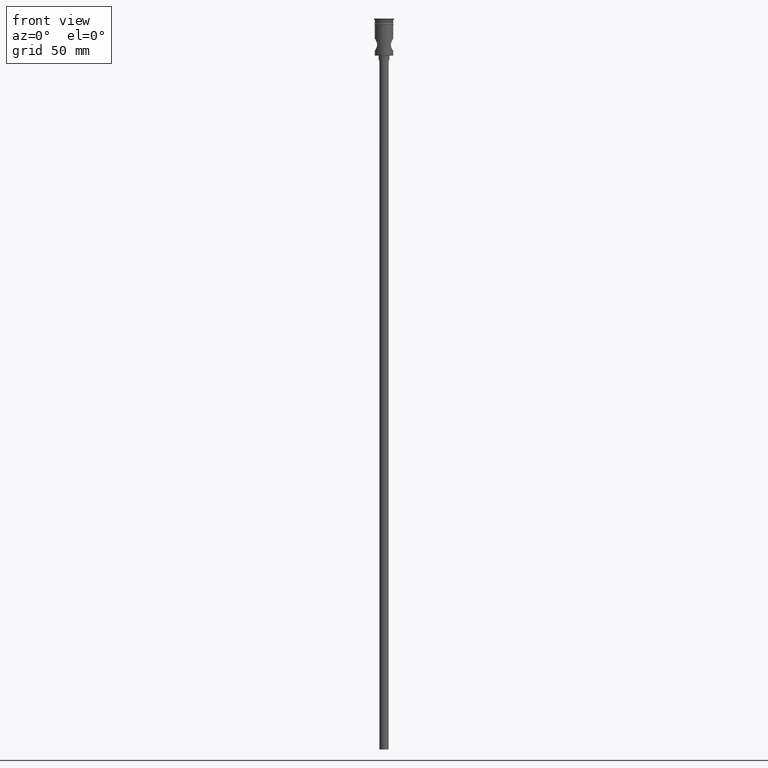
[diagram: clean part render]
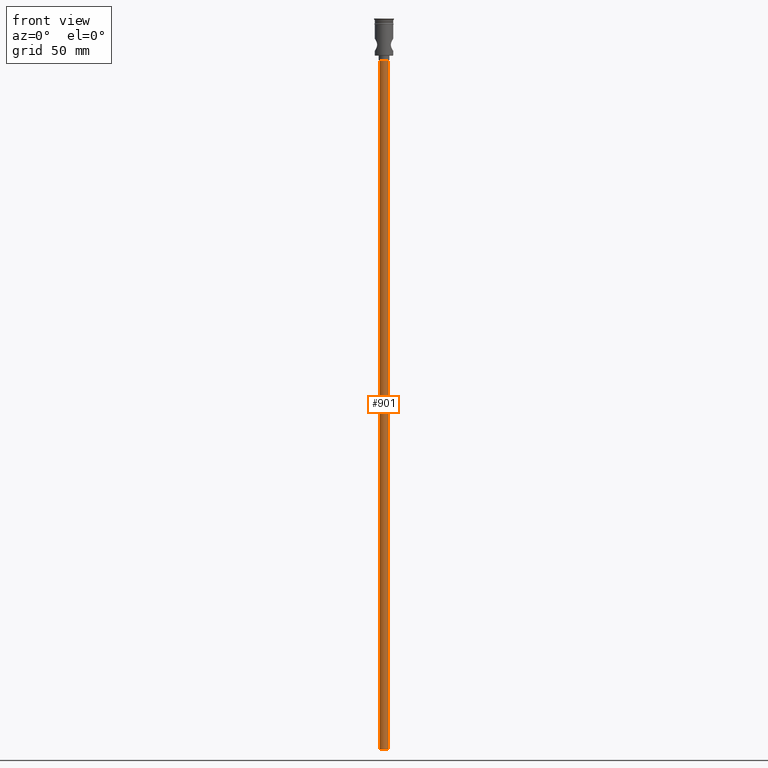
[diagram: same view with one face highlighted and labeled with its STEP entity id]
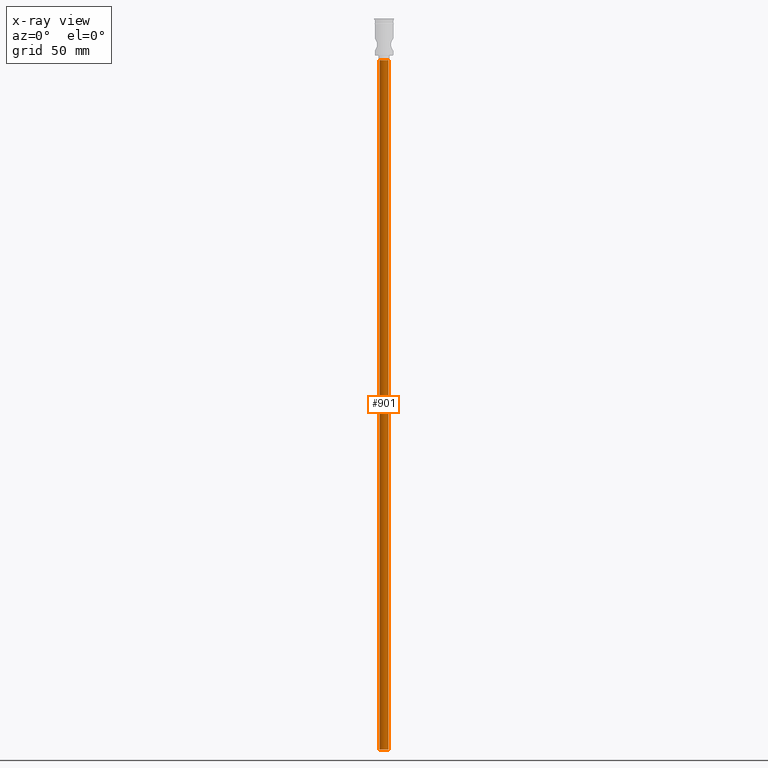
[diagram: x-ray of the same camera — body ghosted, the highlighted face saturated]
A machine part, front view. The second image highlights one B-rep face of the part: STEP entity #901.
The next image is the same camera in x-ray: the body ghosted, the highlighted face saturated — about 0% of this face is hidden behind the body in this view.
In plain terms, the highlighted cylindrical surface (edge-blend (fillet) strip) has radius 3 mm, axis along (-0, -0, 1).
Its self-contained STEP definition (entity closure, byte-faithful):
#15 = DIRECTION ( 'NONE',  ( -1.000000000000000000, 0.000000000000000000, 0.000000000000000000 ) ) ;
#36 = CIRCLE ( 'NONE', #1020, 3.000000000000000444 ) ;
#113 = CARTESIAN_POINT ( 'NONE',  ( 3.000000000000000444, 0.000000000000000000, -474.0000000000000568 ) ) ;
#117 = CARTESIAN_POINT ( 'NONE',  ( 0.000000000000000000, 0.000000000000000000, -474.0000000000000568 ) ) ;
#149 = DIRECTION ( 'NONE',  ( -0.000000000000000000, -0.000000000000000000, 1.000000000000000000 ) ) ;
#214 = AXIS2_PLACEMENT_3D ( 'NONE', #117, #586, #810 ) ;
#301 = DIRECTION ( 'NONE',  ( -0.000000000000000000, -0.000000000000000000, 1.000000000000000000 ) ) ;
#320 = VERTEX_POINT ( 'NONE', #113 ) ;
#411 = VERTEX_POINT ( 'NONE', #1290 ) ;
#498 = VERTEX_POINT ( 'NONE', #975 ) ;
#502 = EDGE_LOOP ( 'NONE', ( #1264, #707, #1118, #662 ) ) ;
#516 = VECTOR ( 'NONE', #1088, 1000.000000000000000 ) ;
#542 = EDGE_CURVE ( 'NONE', #1049, #411, #545, .T. ) ;
#545 = LINE ( 'NONE', #1009, #922 ) ;
#586 = DIRECTION ( 'NONE',  ( 0.000000000000000000, 0.000000000000000000, -1.000000000000000000 ) ) ;
#620 = CARTESIAN_POINT ( 'NONE',  ( 3.000000000000000444, 0.000000000000000000, -474.0000000000000568 ) ) ;
#640 = EDGE_CURVE ( 'NONE', #320, #498, #761, .T. ) ;
#662 = ORIENTED_EDGE ( 'NONE', *, *, #962, .T. ) ;
#707 = ORIENTED_EDGE ( 'NONE', *, *, #870, .F. ) ;
#718 = CARTESIAN_POINT ( 'NONE',  ( 0.000000000000000000, 0.000000000000000000, -474.0000000000000568 ) ) ;
#761 = LINE ( 'NONE', #620, #516 ) ;
#810 = DIRECTION ( 'NONE',  ( -1.000000000000000000, 0.000000000000000000, 0.000000000000000000 ) ) ;
#834 = DIRECTION ( 'NONE',  ( 1.000000000000000000, 0.000000000000000000, 0.000000000000000000 ) ) ;
#870 = EDGE_CURVE ( 'NONE', #320, #1049, #1188, .T. ) ;
#871 = CARTESIAN_POINT ( 'NONE',  ( -3.000000000000000444, 3.673940397442060361E-16, -474.0000000000000568 ) ) ;
#901 = ADVANCED_FACE ( 'NONE', ( #1038 ), #1268, .T. ) ;
#922 = VECTOR ( 'NONE', #301, 1000.000000000000000 ) ;
#941 = CARTESIAN_POINT ( 'NONE',  ( 0.000000000000000000, 0.000000000000000000, -27.00000000000000000 ) ) ;
#962 = EDGE_CURVE ( 'NONE', #498, #411, #36, .T. ) ;
#975 = CARTESIAN_POINT ( 'NONE',  ( 3.000000000000000444, 0.000000000000000000, -27.00000000000000000 ) ) ;
#1009 = CARTESIAN_POINT ( 'NONE',  ( -3.000000000000000444, 3.673940397442060361E-16, -474.0000000000000568 ) ) ;
#1020 = AXIS2_PLACEMENT_3D ( 'NONE', #941, #1046, #15 ) ;
#1038 = FACE_OUTER_BOUND ( 'NONE', #502, .T. ) ;
#1046 = DIRECTION ( 'NONE',  ( 0.000000000000000000, 0.000000000000000000, -1.000000000000000000 ) ) ;
#1049 = VERTEX_POINT ( 'NONE', #871 ) ;
#1088 = DIRECTION ( 'NONE',  ( -0.000000000000000000, -0.000000000000000000, 1.000000000000000000 ) ) ;
#1118 = ORIENTED_EDGE ( 'NONE', *, *, #640, .T. ) ;
#1188 = CIRCLE ( 'NONE', #214, 3.000000000000000444 ) ;
#1238 = AXIS2_PLACEMENT_3D ( 'NONE', #718, #149, #834 ) ;
#1264 = ORIENTED_EDGE ( 'NONE', *, *, #542, .F. ) ;
#1268 = CYLINDRICAL_SURFACE ( 'NONE', #1238, 3.000000000000000444 ) ;
#1290 = CARTESIAN_POINT ( 'NONE',  ( -3.000000000000000444, 3.673940397442060361E-16, -27.00000000000000000 ) ) ;